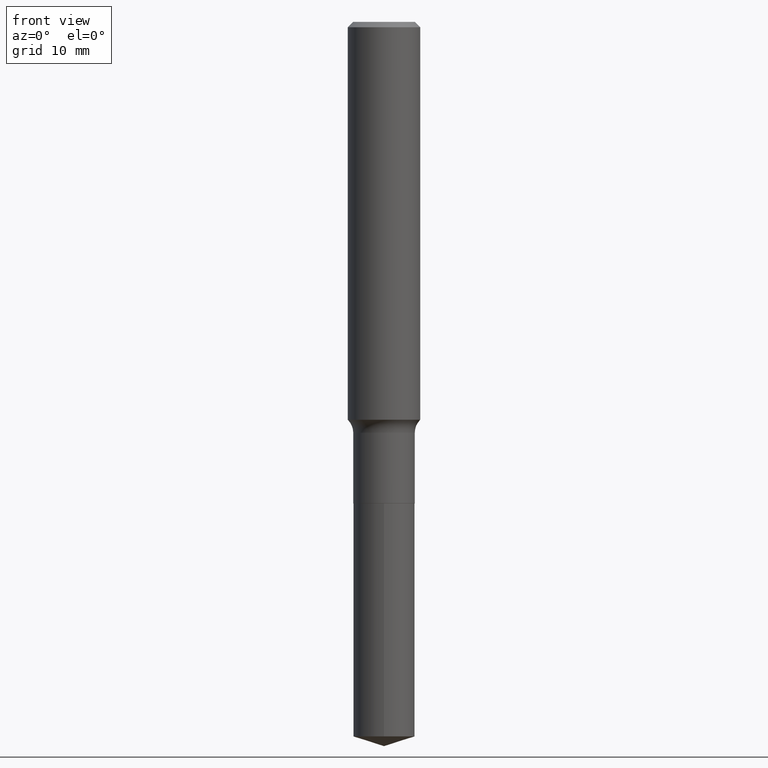
[diagram: clean part render]
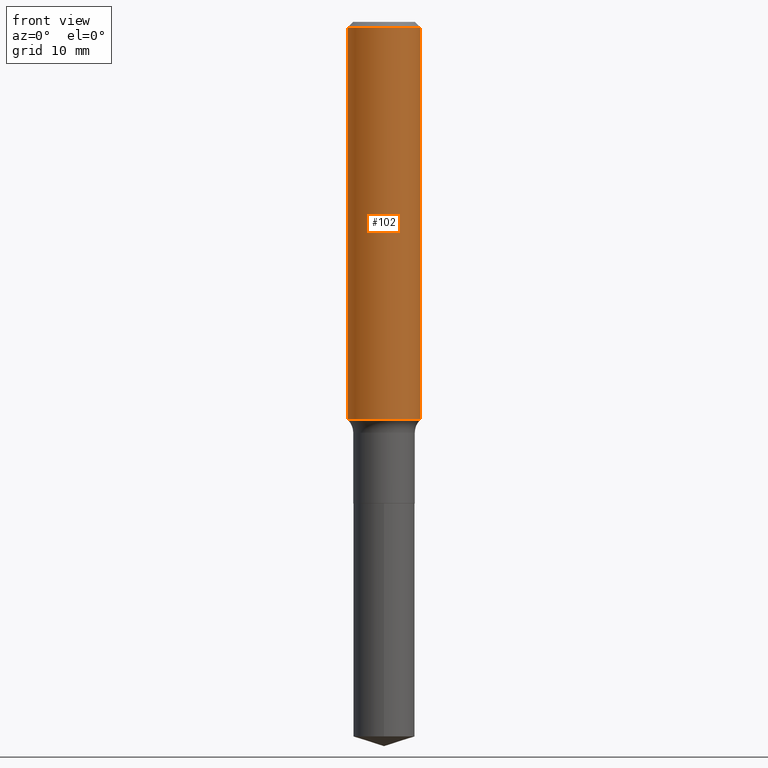
[diagram: same view with one face highlighted and labeled with its STEP entity id]
A machine part, front view. The second image highlights one B-rep face of the part: STEP entity #102.
In plain terms, the highlighted cylindrical surface (edge-blend (fillet) strip) has radius 3.9688 mm, axis along (-0, 0, 1).
Its self-contained STEP definition (entity closure, byte-faithful):
#2 = DIRECTION ( 'NONE',  ( -2.445468806185136597E-29, 3.491481338843145583E-15, 1.000000000000000000 ) ) ;
#4 = DIRECTION ( 'NONE',  ( -2.445468806185136597E-29, 3.491481338843145583E-15, 1.000000000000000000 ) ) ;
#6 = CARTESIAN_POINT ( 'NONE',  ( 4.198742512749911832E-29, -5.994691526138346119E-15, -1.716947892416519350 ) ) ;
#18 = EDGE_CURVE ( 'NONE', #268, #259, #308, .T. ) ;
#33 = ORIENTED_EDGE ( 'NONE', *, *, #18, .F. ) ;
#46 = CARTESIAN_POINT ( 'NONE',  ( -0.1562500000000001110, 1.110223024625157329E-15, -7.685836078523295364E-30 ) ) ;
#47 = AXIS2_PLACEMENT_3D ( 'NONE', #191, #4, #273 ) ;
#54 = CARTESIAN_POINT ( 'NONE',  ( -0.1562500000000000000, -1.928038535383583157E-15, -0.02343750000000013878 ) ) ;
#66 = ORIENTED_EDGE ( 'NONE', *, *, #421, .T. ) ;
#70 = ORIENTED_EDGE ( 'NONE', *, *, #301, .F. ) ;
#71 = AXIS2_PLACEMENT_3D ( 'NONE', #6, #389, #388 ) ;
#102 = ADVANCED_FACE ( 'NONE', ( #278 ), #382, .T. ) ;
#134 = VECTOR ( 'NONE', #367, 39.37007874015748143 ) ;
#140 = EDGE_CURVE ( 'NONE', #297, #415, #168, .T. ) ;
#141 = CARTESIAN_POINT ( 'NONE',  ( 0.1562500000000002220, -7.085779444526826081E-15, -1.716947892416519350 ) ) ;
#142 = CARTESIAN_POINT ( 'NONE',  ( 5.731567514496448055E-31, -8.183159387913671455E-17, -0.02343750000000013878 ) ) ;
#168 = CIRCLE ( 'NONE', #71, 0.1562500000000002220 ) ;
#170 = EDGE_LOOP ( 'NONE', ( #70, #468, #66, #33 ) ) ;
#191 = CARTESIAN_POINT ( 'NONE',  ( 0.000000000000000000, 0.000000000000000000, 0.000000000000000000 ) ) ;
#216 = CARTESIAN_POINT ( 'NONE',  ( 0.1562500000000001110, -1.091087918388479962E-15, 7.619026212181155982E-30 ) ) ;
#244 = LINE ( 'NONE', #46, #362 ) ;
#259 = VERTEX_POINT ( 'NONE', #329 ) ;
#268 = VERTEX_POINT ( 'NONE', #54 ) ;
#273 = DIRECTION ( 'NONE',  ( 1.000000000000000000, -6.982962677686266711E-15, 4.876176775795936353E-29 ) ) ;
#278 = FACE_OUTER_BOUND ( 'NONE', #170, .T. ) ;
#297 = VERTEX_POINT ( 'NONE', #396 ) ;
#301 = EDGE_CURVE ( 'NONE', #297, #268, #244, .T. ) ;
#308 = CIRCLE ( 'NONE', #368, 0.1562500000000000000 ) ;
#329 = CARTESIAN_POINT ( 'NONE',  ( 0.1562500000000000000, -1.172919512267615999E-15, -0.02343750000000013878 ) ) ;
#357 = DIRECTION ( 'NONE',  ( -2.445468806185136877E-29, 3.491481338843145188E-15, 1.000000000000000000 ) ) ;
#362 = VECTOR ( 'NONE', #357, 39.37007874015748143 ) ;
#367 = DIRECTION ( 'NONE',  ( -2.445468806185136877E-29, 3.491481338843145188E-15, 1.000000000000000000 ) ) ;
#368 = AXIS2_PLACEMENT_3D ( 'NONE', #142, #2, #484 ) ;
#382 = CYLINDRICAL_SURFACE ( 'NONE', #47, 0.1562500000000001110 ) ;
#388 = DIRECTION ( 'NONE',  ( 1.000000000000000000, -6.982962677686265922E-15, 0.000000000000000000 ) ) ;
#389 = DIRECTION ( 'NONE',  ( -2.445468806185136597E-29, 3.491481338843145583E-15, 1.000000000000000000 ) ) ;
#396 = CARTESIAN_POINT ( 'NONE',  ( -0.1562500000000002220, -4.884468501513188001E-15, -1.716947892416519350 ) ) ;
#415 = VERTEX_POINT ( 'NONE', #141 ) ;
#421 = EDGE_CURVE ( 'NONE', #415, #259, #448, .T. ) ;
#448 = LINE ( 'NONE', #216, #134 ) ;
#468 = ORIENTED_EDGE ( 'NONE', *, *, #140, .T. ) ;
#484 = DIRECTION ( 'NONE',  ( 1.000000000000000000, -6.982962677686266711E-15, 0.000000000000000000 ) ) ;